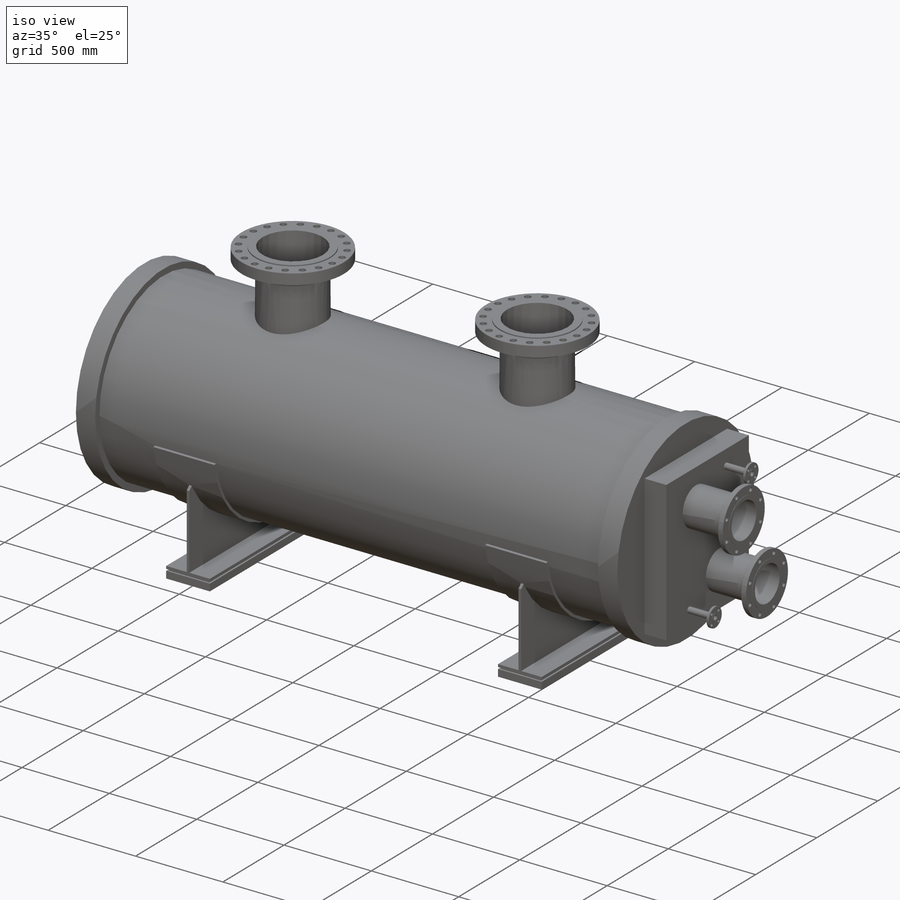
[diagram: iso view]
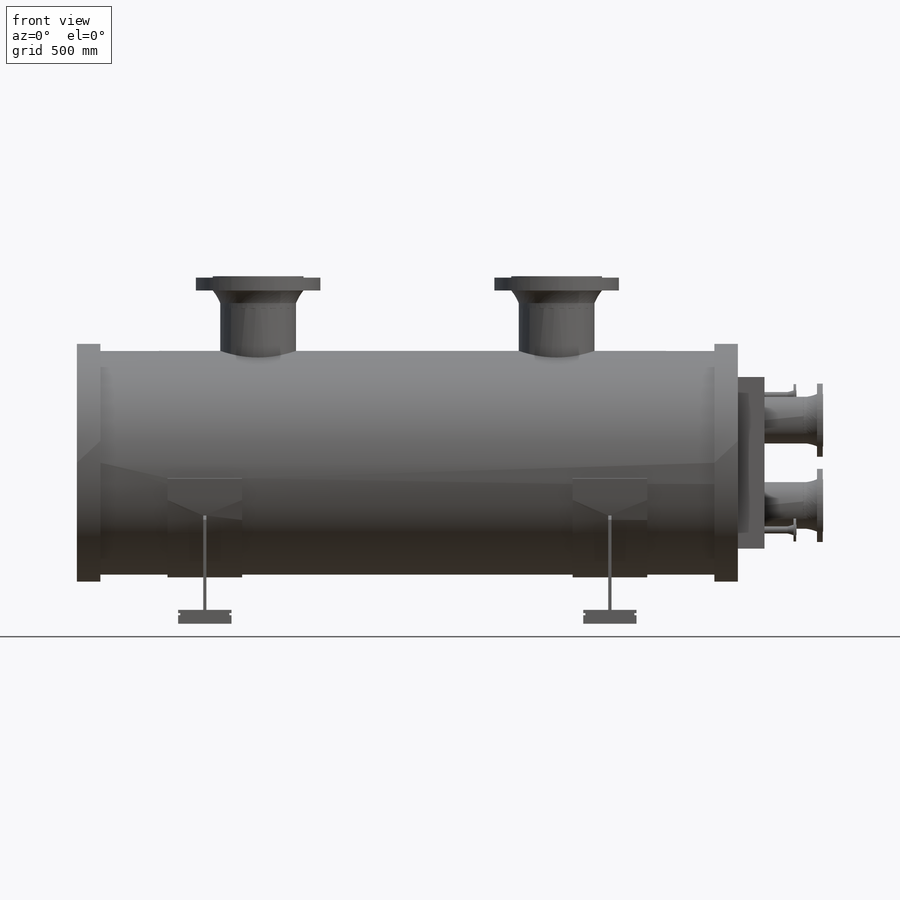
[diagram: front view]
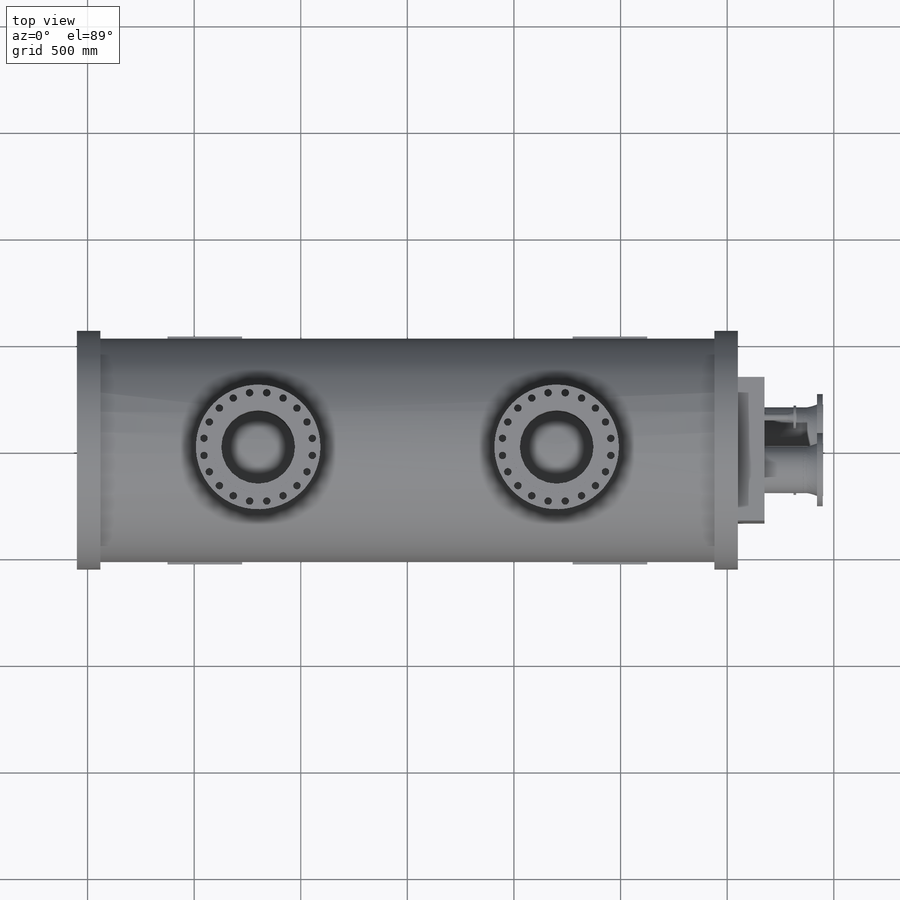
[diagram: top view]
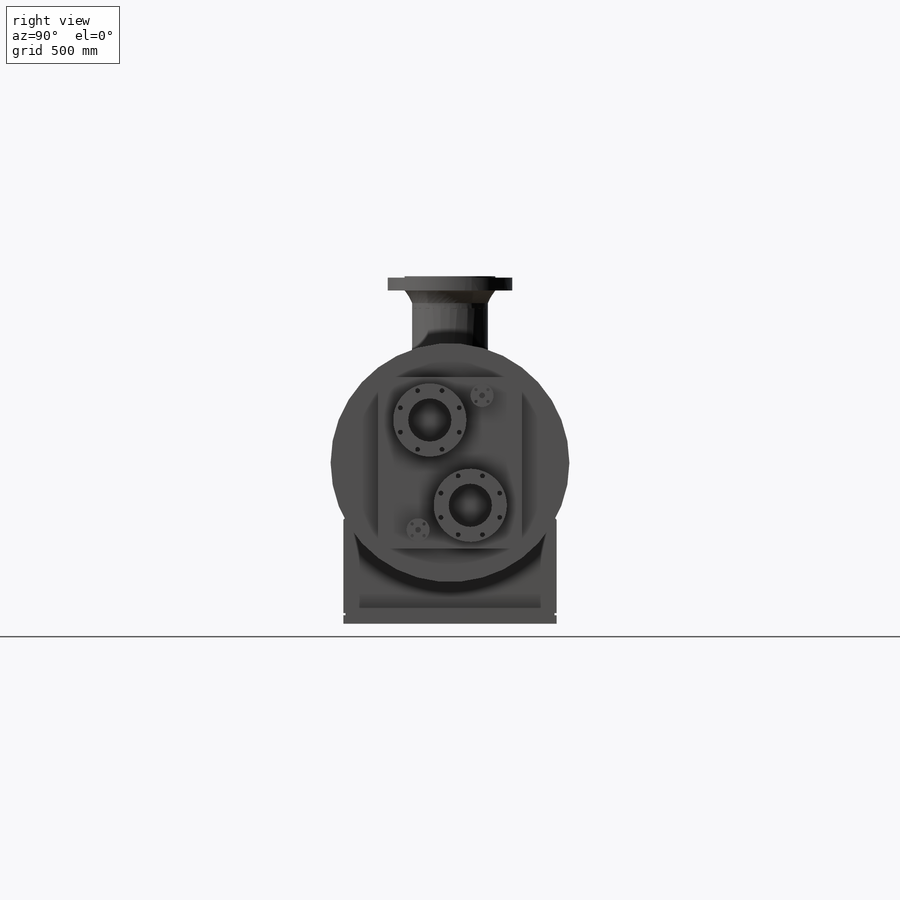
[diagram: right view]
SOLIDWORKS PART (.sldprt)
format: sldprt  version: not decoded by parser v0  size: 1,455,616 bytes
history: native  units: mm
features: sketch x13, extrude x8, move_body x8, revolve x5, plane x2, material x1, mirror x1 + 8 further entries (+56 scaffold rows collapsed; 40 parser-record rows omitted)
feature tree (142):
  scaffold x56  (default folders/planes/origin — collapsed)
  material  "Material <not specified>"
  sketch  "Sketch2"  dims[D1=1550.0mm D2=110.0mm D3=560.0mm D4=1050.0mm]
  revolve  "Revolve1"  Angle=360deg
  sketch  "Sketch3"  dims[D1=520.0mm D2=15.0mm]
  extrude  "Extrude1"  Depth=175mm
  sketch  "Sketch4"  dims[c1.D1=500.0mm c1.D2=~5.368428mm c2.D2=45.0deg c2.D3=20.0mm c2.D4=690.0mm]
  extrude  "Extrude2"  Depth=7.5mm
  sketch  "Sketch5"  dims[D1=15.0mm]
  extrude  "Extrude3"  Depth=125mm
  mirror  "Mirror1"
  sketch  "Sketch6"
  extrude  "Extrude4"  Depth=125mm
  sketch  "Sketch7"  dims[D5=219.2mm D6=219.2mm D7=202.69mm D8=202.69mm D1=200.0mm D2=200.0mm D3=95.0mm D4=95.0mm]
  sketch  "Sketch8"  dims[D1=33.53mm D2=33.53mm D3=26.67mm D4=26.67mm D5=150.0mm D6=150.0mm D7=315.0mm D8=315.0mm]
  extrude  "Extrude5"  Depth=150mm
  "welding neck flange4"
  parser-record x40  (decoder bookkeeping rows leaked as tree rows — omitted from the tree; the rows remain in map.json)
  move_body  "Body-Move/Copy10"
  "welding neck flange5"
  move_body  "Body-Move/Copy12"
  extrude  "Extrude6"  Depth=275mm
  "welding neck flange"
  move_body  "Body-Move/Copy14"
  "welding neck flange6"
  move_body  "Body-Move/Copy16"
  plane  "Plane1"  Offset=700mm
  plane  "Plane2"  Offset=700mm
  sketch  "Sketch9"  dims[c1.D1=~813.731502mm c2.D1=45.0deg c2.D2=355.6mm c2.D3=350.0mm c2.D4=5.08mm c2.D5=950.0mm c2.D6=950.0mm]
  revolve  "Revolve2"  Angle=360deg
  sketch  "Sketch10"  dims[c1.D1=150.0mm c1.D2=728.9764mm c2.D2=45.0deg c2.D3=355.6mm c2.D4=950.0mm c2.D5=550.0mm]
  revolve  "Revolve3"  Angle=360deg
  "welding neck flange7"
  move_body  "Body-Move/Copy18"
  "welding neck flange8"
  move_body  "Body-Move/Copy20"
  sketch  "Sketch11"  dims[D1=5.08mm D2=355.6mm D3=1580.0mm]
  revolve  "Revolve4"  Angle=360deg
  sketch  "Sketch12"  dims[c1.D1=5.08mm c1.D2=~432.667401mm c2.D2=~1.117258deg]
  revolve  "Revolve5"  Angle=360deg
  "welding neck flange12"
  move_body  "Body-Move/Copy28"
  "welding neck flange13"
  move_body  "Body-Move/Copy30"
  sketch  "Sketch13"  dims[c1.D1=0.0mm c1.D2=0.0mm c2.D1=10.0mm c2.D2=10.0mm]
  extrude  "Extrude7"  Depth=10mm
  sketch  "Sketch14"  dims[D1=0.0mm D2=0.0mm]
  extrude  "Extrude8"  Depth=40mm
decode coverage: 25 of 35 modeling features carry decoded parameters; 8 rows unclassified (native names shown)
note: ~ marks probable driven/reference dimensions
note: suppression state not decoded; provenance and decode notes live in map.json
